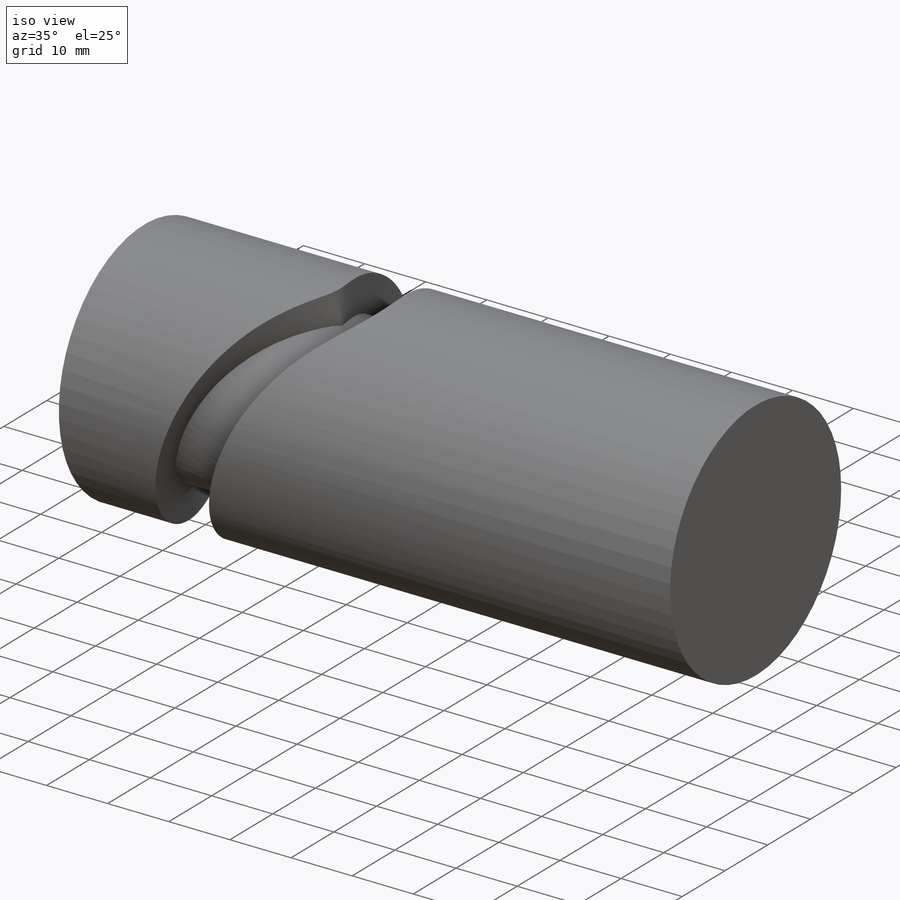
[diagram: iso view]
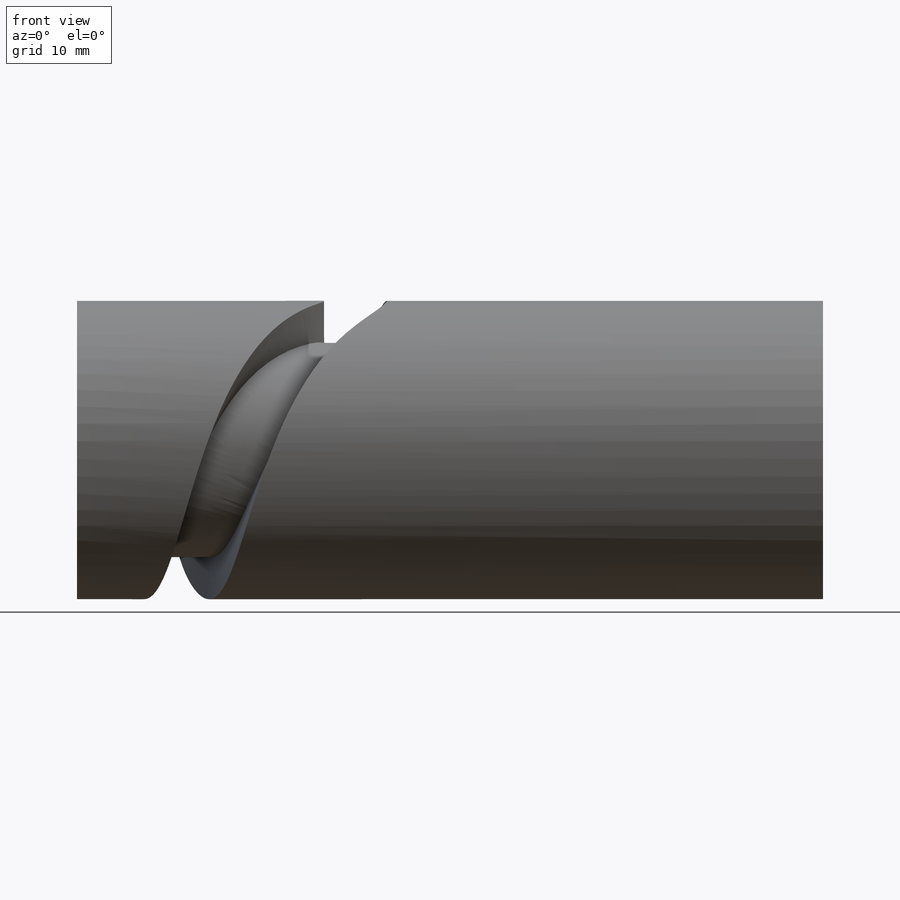
[diagram: front view]
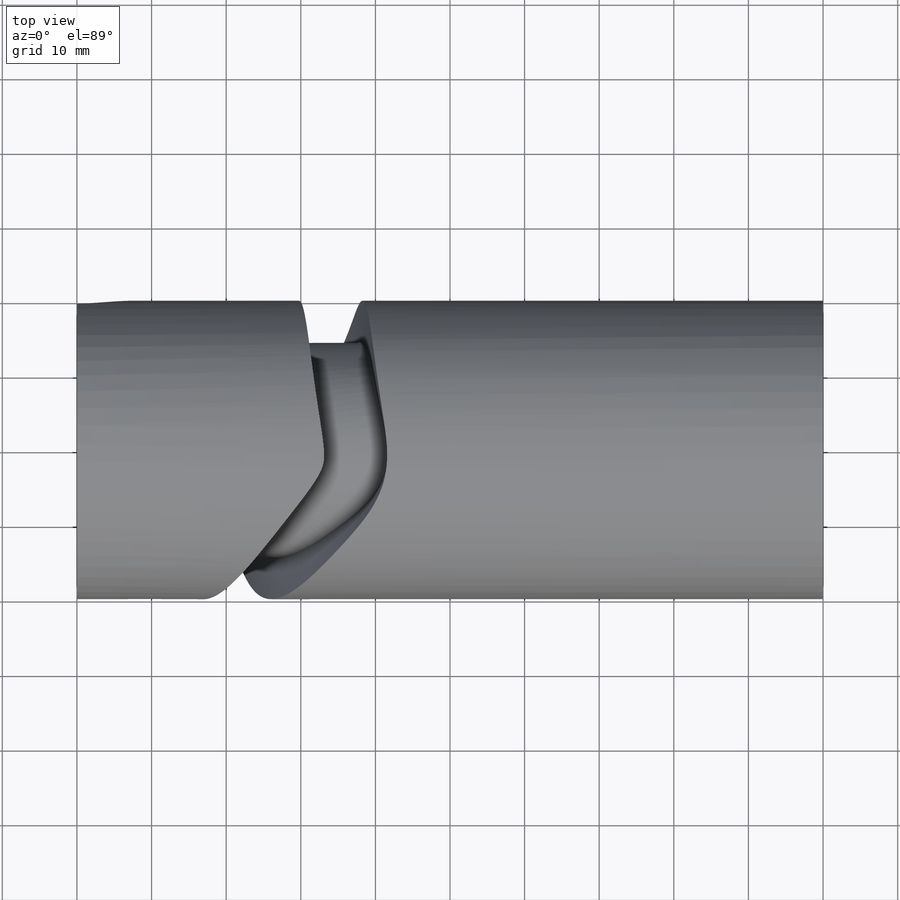
[diagram: top view]
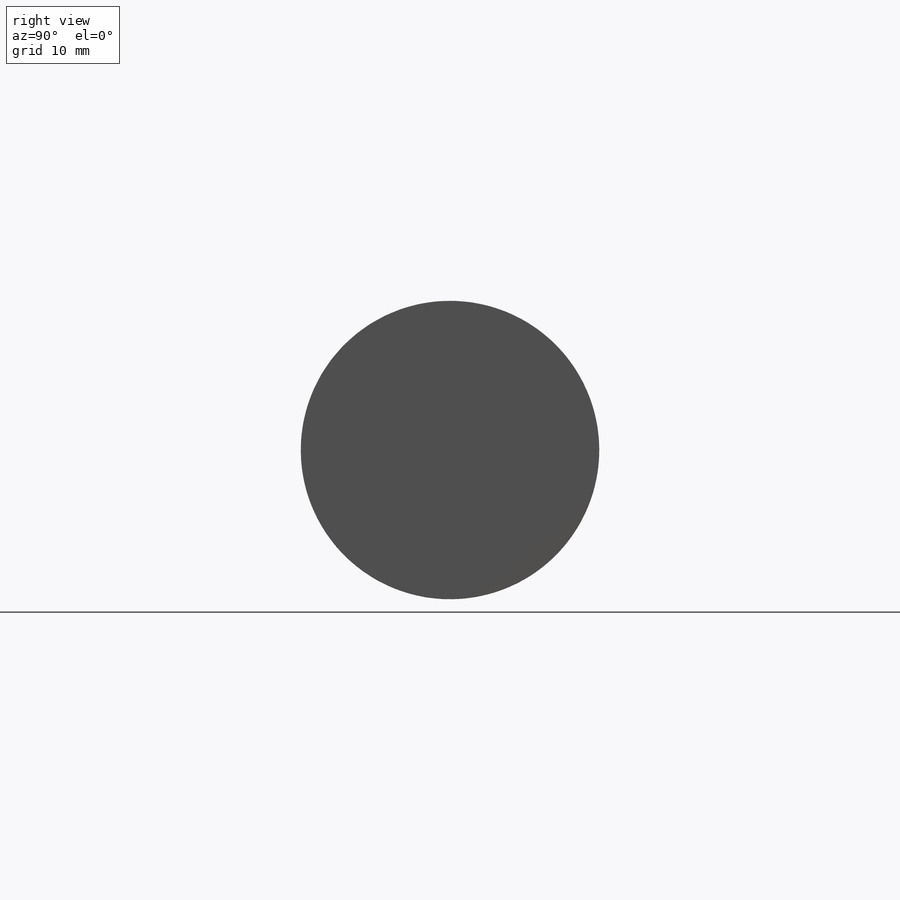
[diagram: right view]
SOLIDWORKS PART (.sldprt)
format: sldprt  version: not decoded by parser v0  size: 920,064 bytes
history: native  units: mm
features: sketch x5, plane x4, revolve x2, material x1, pattern_circular x1, sweep x1 (+12 scaffold rows collapsed)
feature tree (26):
  scaffold x12  (default folders/planes/origin — collapsed)
  material  "11 600"
  plane  "Přední rovina"
  plane  "Horní rovina"
  plane  "Pravá rovina"
  sketch  "Skica1"  dims[c1.D1=500.0mm c1.D2=20.0mm c1.D3=16.0mm c2.D1=500.0mm c2.D2=40.0mm c2.D4=200.0mm c2.D5=0.01mm c3.D1=40.0mm c3.D2=100.0mm]
  revolve  "Otočit kolem osy1"  Angle=360deg faceID=1
  sketch  "Skica6"
  pattern_circular  "Kruhové pole1"  Count=12 Angle=30deg
  sketch  "3DSkica3"  dims[D1=~8.299479mm D2=5.0mm]
  plane  "Rovina1"
  sketch  "Skica8"
  revolve  "Rotovat1"  Angle=360deg
  sketch  "3DSkica5"
  sweep  "Odebrat tažením po křivce2"
decode coverage: 5 of 9 modeling features carry decoded parameters
note: ~ marks probable driven/reference dimensions
note: suppression state not decoded; provenance and decode notes live in map.json
